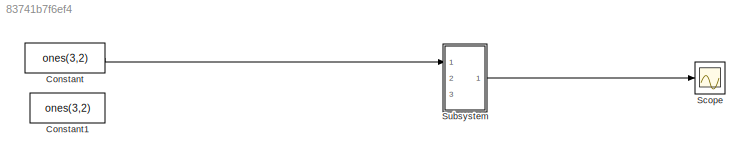
MODEL slx_83741b7f6ef4
KIND model
CONFIG AbsTol = auto
CONFIG EnableMultiTasking = on
CONFIG FixedStep = auto
CONFIG MaxStep = auto
CONFIG MinStep = auto
CONFIG RelTol = 1e-3
CONFIG SampleTimeConstraint = Unconstrained
CONFIG Solver = VariableStepAuto
CONFIG SolverName = VariableStepAuto
CONFIG StartTime = 0.0
CONFIG StopTime = 10.0
BLOCK [Constant] Constant
  Value = ones(3,2)
BLOCK [Constant] Constant1
  Value = ones(3,2)
BLOCK [Scope] Scope
  NumInputPorts = 1
  Ports = [1]
  ScopeSpecificationString = C++SS(StrPVP('SaveName','ScopeData'),StrPVP('LimitDataPoints','on'),StrPVP('DataFormat','Array'),StrPVP('Decimation','1'),StrPVP('BlockParamSampleInput','off'))
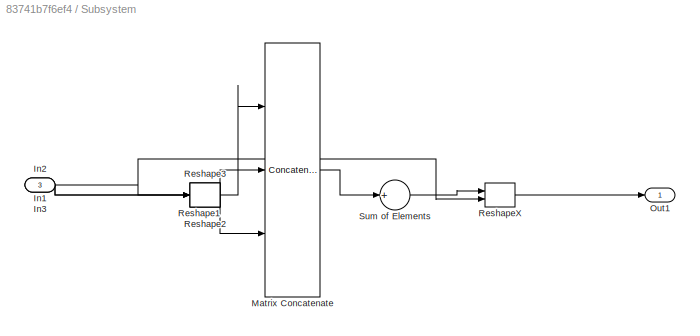
BLOCK [SubSystem] Subsystem
  Ports = [3, 1]
  RequestExecContextInheritance = off
  Variant = off
BLOCK [Inport] Subsystem/In1
  IconDisplay = Port number
BLOCK [Inport] Subsystem/In2
  IconDisplay = Port number
  Port = 2
BLOCK [Inport] Subsystem/In3
  IconDisplay = Port number
  Port = 3
BLOCK [Concatenate] Subsystem/Matrix Concatenate
  ConcatenateDimension = 2
  Mode = Multidimensional array
  NumInputs = 3
  Ports = [3, 1]
BLOCK [Outport] Subsystem/Out1
  IconDisplay = Port number
BLOCK [Reshape] Subsystem/Reshape1
  Ports = [1, 1]
BLOCK [Reshape] Subsystem/Reshape2
  Ports = [1, 1]
BLOCK [Reshape] Subsystem/Reshape3
  Ports = [1, 1]
BLOCK [Reshape] Subsystem/ReshapeX
  OutputDimensionality = Derive from reference input port
  Ports = [2, 1]
BLOCK [Sum] Subsystem/Sum of Elements
  CollapseDim = 2
  CollapseMode = Specified dimension
  InputSameDT = off
  Inputs = +
  OutDataTypeStr = Inherit: Inherit via internal rule
  Ports = [1, 1]
  SaturateOnIntegerOverflow = off
LINE Constant:1 -> Subsystem:1
NET Subsystem/In1:1 -> Subsystem/Reshape1:1, Subsystem/ReshapeX:2
LINE Subsystem/In2:1 -> Subsystem/Reshape2:1
LINE Subsystem/In3:1 -> Subsystem/Reshape3:1
LINE Subsystem/Matrix Concatenate:1 -> Subsystem/Sum of Elements:1
LINE Subsystem/Reshape1:1 -> Subsystem/Matrix Concatenate:1
LINE Subsystem/Reshape2:1 -> Subsystem/Matrix Concatenate:2
LINE Subsystem/Reshape3:1 -> Subsystem/Matrix Concatenate:3
LINE Subsystem/ReshapeX:1 -> Subsystem/Out1:1
LINE Subsystem/Sum of Elements:1 -> Subsystem/ReshapeX:1
LINE Subsystem:1 -> Scope:1
note: NET lines group one-source signal fan-out (src -> all destinations, sorted); 1:1 wires keep LINE
